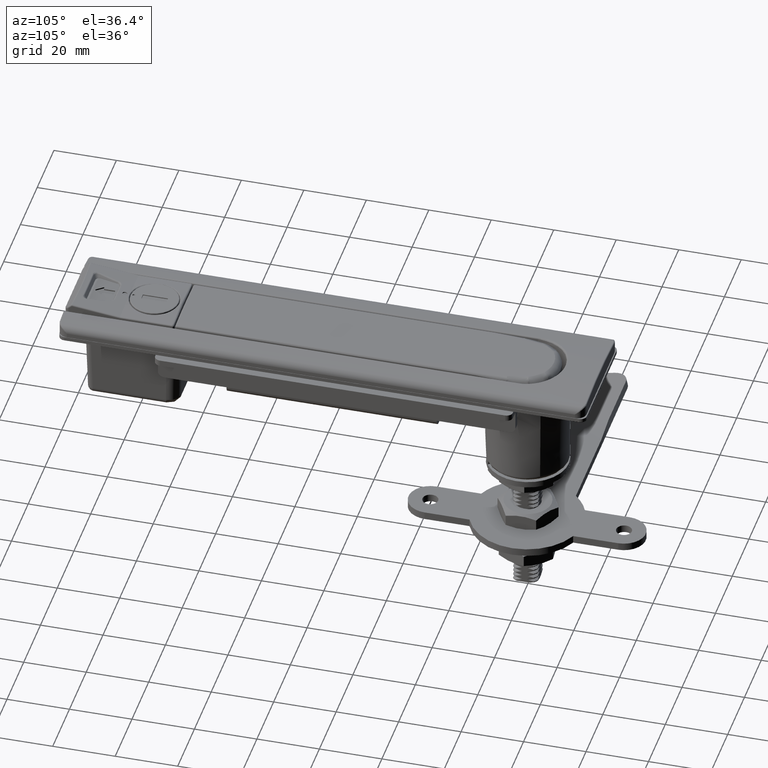
[diagram: clean part render]
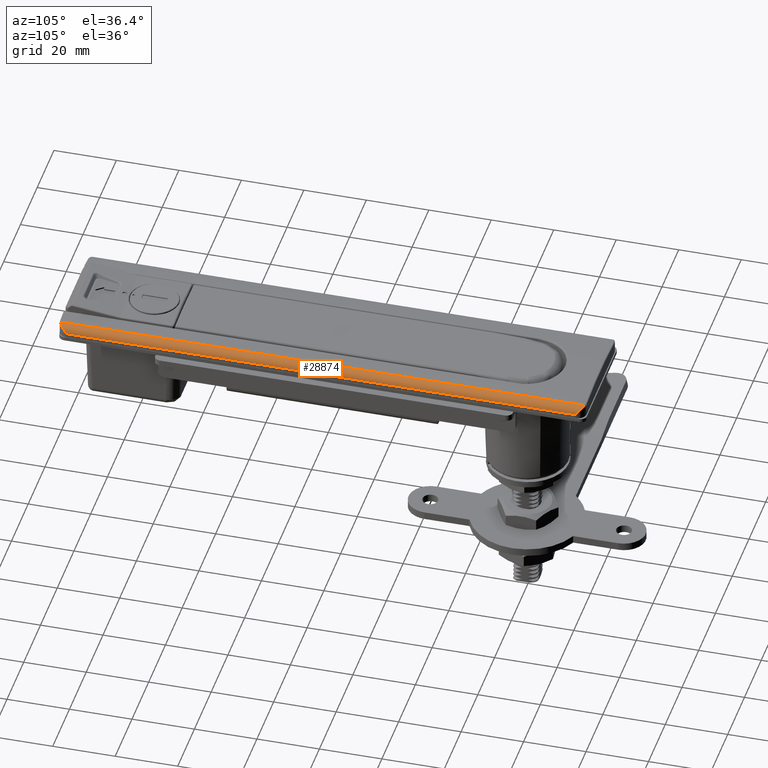
[diagram: same view with one face highlighted and labeled with its STEP entity id]
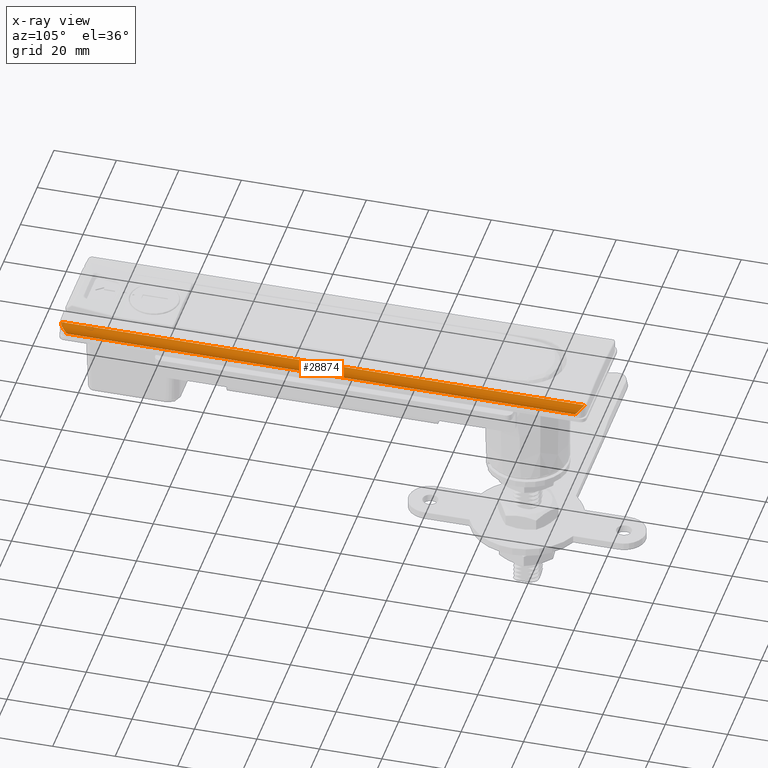
[diagram: x-ray of the same camera — body ghosted, the highlighted face saturated]
A machine part, auxiliary view. The second image highlights one B-rep face of the part: STEP entity #28874.
The next image is the same camera in x-ray: the body ghosted, the highlighted face saturated — about 0% of this face is hidden behind the body in this view.
In plain terms, the highlighted cylindrical surface (edge-blend (fillet) strip) has radius 2.5 mm, axis along (0, 1, 0).
Its self-contained STEP definition (entity closure, byte-faithful):
#901=B_SPLINE_CURVE_WITH_KNOTS('',3,(#41511,#41512,#41513,#41514,#41515,
#41516,#41517,#41518,#41519,#41520,#41521,#41522,#41523,#41524,#41525,#41526,
#41527,#41528,#41529,#41530,#41531,#41532,#41533,#41534,#41535,#41536,#41537,
#41538,#41539,#41540,#41541,#41542,#41543,#41544,#41545,#41546,#41547,#41548,
#41549,#41550,#41551,#41552,#41553,#41554,#41555,#41556,#41557,#41558,#41559,
#41560,#41561,#41562,#41563,#41564,#41565,#41566,#41567,#41568,#41569,#41570,
#41571,#41572,#41573,#41574),.UNSPECIFIED.,.F.,.F.,(4,2,2,2,2,2,2,2,2,2,
2,2,2,2,2,2,2,2,2,2,2,2,2,2,2,2,2,2,2,2,2,4),(0.,0.0384634394624664,0.0435843796102835,
0.0809559278017429,0.0874011518673533,0.125892092211438,0.131391041668699,
0.172829267349658,0.175735120925989,0.187621300080923,0.235681866692952,
0.243637969113694,0.298029848429125,0.354858912320566,0.411687976212006,
0.468817078083116,0.480596287940947,0.510405593114585,0.551465780998943,
0.617805382289646,0.623523825910446,0.690544585988126,0.697356008206868,
0.715723545679364,0.784966065123224,0.796262857976076,0.871473666812779,
0.877614821333242,0.929258128399176,0.980846956027261,0.997683300888228,
1.),.UNSPECIFIED.);
#902=B_SPLINE_CURVE_WITH_KNOTS('',3,(#41575,#41576,#41577,#41578,#41579,
#41580,#41581,#41582,#41583,#41584,#41585,#41586,#41587,#41588,#41589,#41590,
#41591,#41592,#41593,#41594,#41595,#41596,#41597,#41598,#41599,#41600,#41601,
#41602,#41603,#41604,#41605,#41606,#41607,#41608,#41609,#41610,#41611,#41612,
#41613,#41614,#41615,#41616,#41617,#41618,#41619,#41620,#41621,#41622,#41623,
#41624,#41625,#41626,#41627,#41628,#41629,#41630,#41631,#41632,#41633,#41634,
#41635,#41636,#41637,#41638,#41639,#41640),.UNSPECIFIED.,.F.,.F.,(4,2,2,
2,2,2,2,2,2,2,2,2,2,2,2,2,2,2,2,2,2,2,2,2,2,2,2,2,2,2,2,2,4),(0.,0.0023166991117766,
0.019153043972738,0.0707418716007594,0.152202501768872,0.224843132461699,
0.23285538708159,0.284276454320295,0.352498755217174,0.360285346687181,
0.427250042522715,0.432123969089421,0.477283248407298,0.489589104140577,
0.502756336389536,0.557843383776528,0.571767987568715,0.588312023787839,
0.644328692820644,0.698927249929528,0.751199112749147,0.755652974924293,
0.803734681458656,0.812378699919057,0.850332110685978,0.856759388873845,
0.895714227169816,0.900729709268405,0.938428170322129,0.944509478436495,
0.983040055087847,0.988110544270488,1.),.UNSPECIFIED.);
#3311=FACE_OUTER_BOUND('',#5100,.T.);
#5100=EDGE_LOOP('',(#19372,#19373,#19374,#19375));
#6885=LINE('',#39576,#8661);
#6889=LINE('',#39591,#8665);
#8661=VECTOR('',#32990,167.566902154712);
#8665=VECTOR('',#33004,162.6);
#11351=VERTEX_POINT('',#39573);
#11352=VERTEX_POINT('',#39575);
#11357=VERTEX_POINT('',#39589);
#11358=VERTEX_POINT('',#39590);
#14296=EDGE_CURVE('',#11351,#11352,#6885,.T.);
#14303=EDGE_CURVE('',#11357,#11358,#6889,.T.);
#14558=EDGE_CURVE('',#11351,#11358,#901,.T.);
#14559=EDGE_CURVE('',#11357,#11352,#902,.T.);
#19372=ORIENTED_EDGE('',*,*,#14296,.F.);
#19373=ORIENTED_EDGE('',*,*,#14558,.T.);
#19374=ORIENTED_EDGE('',*,*,#14303,.F.);
#19375=ORIENTED_EDGE('',*,*,#14559,.T.);
#28060=CYLINDRICAL_SURFACE('',#30785,2.5);
#28874=ADVANCED_FACE('',(#3311),#28060,.T.);
#30785=AXIS2_PLACEMENT_3D('',#41510,#33493,#33494);
#32990=DIRECTION('',(1.,0.,0.));
#33004=DIRECTION('',(-1.,0.,0.));
#33493=DIRECTION('center_axis',(1.,0.,0.));
#33494=DIRECTION('ref_axis',(0.,0.,-1.));
#39573=CARTESIAN_POINT('',(-144.833451077356,17.4210966826342,-36.2818562012433));
#39575=CARTESIAN_POINT('',(22.7334510773562,17.4210966826342,-36.2818562012433));
#39576=CARTESIAN_POINT('',(70.75,17.4210966826342,-36.2818562012433));
#39589=CARTESIAN_POINT('',(20.25,19.6000000000001,-33.8025625678869));
#39590=CARTESIAN_POINT('',(-142.35,19.6000000000001,-33.8025625678869));
#39591=CARTESIAN_POINT('',(14.6304817382278,19.6000000000001,-33.8025625678869));
#41510=CARTESIAN_POINT('Origin',(70.75,17.1000000000001,-33.8025625678869));
#41511=CARTESIAN_POINT('Ctrl Pts',(-144.833451077356,17.4210966826342,-36.2818562012433));
#41512=CARTESIAN_POINT('Ctrl Pts',(-144.819328379647,17.4753417846738,-36.2748308444724));
#41513=CARTESIAN_POINT('Ctrl Pts',(-144.803891760081,17.529199882887,-36.2661438750963));
#41514=CARTESIAN_POINT('Ctrl Pts',(-144.785062263687,17.5895847184582,-36.2544348821938));
#41515=CARTESIAN_POINT('Ctrl Pts',(-144.782828993507,17.5966696094506,-36.253029999965));
#41516=CARTESIAN_POINT('Ctrl Pts',(-144.764127133782,17.6553723033165,-36.2411314543925));
#41517=CARTESIAN_POINT('Ctrl Pts',(-144.746552049841,17.7064332039594,-36.2291184032605));
#41518=CARTESIAN_POINT('Ctrl Pts',(-144.724692532522,17.7654119487808,-36.2132946588538));
#41519=CARTESIAN_POINT('Ctrl Pts',(-144.721445379196,17.7740649346236,-36.2109230489537));
#41520=CARTESIAN_POINT('Ctrl Pts',(-144.698587624692,17.8342304672128,-36.1940844242524));
#41521=CARTESIAN_POINT('Ctrl Pts',(-144.677888621928,17.8849284792059,-36.1781044560416));
#41522=CARTESIAN_POINT('Ctrl Pts',(-144.653077134731,17.9417103060796,-36.1581979833236));
#41523=CARTESIAN_POINT('Ctrl Pts',(-144.649954988167,17.9487876528434,-36.1556802884321));
#41524=CARTESIAN_POINT('Ctrl Pts',(-144.623132711058,18.0090171539873,-36.1339435582318));
#41525=CARTESIAN_POINT('Ctrl Pts',(-144.598323429896,18.0609976394972,-36.1131068573247));
#41526=CARTESIAN_POINT('Ctrl Pts',(-144.570752356489,18.115176949519,-36.0892443829338));
#41527=CARTESIAN_POINT('Ctrl Pts',(-144.568940945085,18.1187206691136,-36.0876735070347));
#41528=CARTESIAN_POINT('Ctrl Pts',(-144.559696553223,18.1367256941105,-36.0796409092811));
#41529=CARTESIAN_POINT('Ctrl Pts',(-144.552186539945,18.1510796654024,-36.0730683436115));
#41530=CARTESIAN_POINT('Ctrl Pts',(-144.513913723269,18.2228779556892,-36.0393524559411));
#41531=CARTESIAN_POINT('Ctrl Pts',(-144.481769857176,18.2789244283978,-36.0102842517051));
#41532=CARTESIAN_POINT('Ctrl Pts',(-144.442814134619,18.3422994250104,-35.9742954837322));
#41533=CARTESIAN_POINT('Ctrl Pts',(-144.437246221948,18.35125485893,-35.9691344693685));
#41534=CARTESIAN_POINT('Ctrl Pts',(-144.393345988454,18.4210703380644,-35.9283111845951));
#41535=CARTESIAN_POINT('Ctrl Pts',(-144.353450139676,18.479803818892,-35.8904338096927));
#41536=CARTESIAN_POINT('Ctrl Pts',(-144.269143885734,18.595140288259,-35.8091108750777));
#41537=CARTESIAN_POINT('Ctrl Pts',(-144.224611231761,18.6515300769326,-35.7654934757307));
#41538=CARTESIAN_POINT('Ctrl Pts',(-144.133235090479,18.7590141581463,-35.6749951891539));
#41539=CARTESIAN_POINT('Ctrl Pts',(-144.086391527592,18.8101095729506,-35.6281155233852));
#41540=CARTESIAN_POINT('Ctrl Pts',(-143.990743252698,18.9071709545384,-35.5316847782487));
#41541=CARTESIAN_POINT('Ctrl Pts',(-143.941637429254,18.9534510732556,-35.4817860994687));
#41542=CARTESIAN_POINT('Ctrl Pts',(-143.881219792408,19.0063763141081,-35.4200076507784));
#41543=CARTESIAN_POINT('Ctrl Pts',(-143.870850149366,19.0153210912815,-35.4093911870235));
#41544=CARTESIAN_POINT('Ctrl Pts',(-143.834096002045,19.0465393802598,-35.3717177929538));
#41545=CARTESIAN_POINT('Ctrl Pts',(-143.807477380069,19.0682777626007,-35.3443437203001));
#41546=CARTESIAN_POINT('Ctrl Pts',(-143.743717488471,19.1182920804788,-35.2786337514883));
#41547=CARTESIAN_POINT('Ctrl Pts',(-143.706283655826,19.1460931587088,-35.2399022307015));
#41548=CARTESIAN_POINT('Ctrl Pts',(-143.6074415445,19.2154582431341,-35.1373478100739));
#41549=CARTESIAN_POINT('Ctrl Pts',(-143.545396688522,19.2550334060103,-35.0726542505686));
#41550=CARTESIAN_POINT('Ctrl Pts',(-143.477218446663,19.2944292009692,-35.0012537425327));
#41551=CARTESIAN_POINT('Ctrl Pts',(-143.471802532577,19.2975310715798,-34.9955797610104));
#41552=CARTESIAN_POINT('Ctrl Pts',(-143.40284547639,19.3366750327223,-34.9233105186905));
#41553=CARTESIAN_POINT('Ctrl Pts',(-143.338600437745,19.3693686810516,-34.8556852645123));
#41554=CARTESIAN_POINT('Ctrl Pts',(-143.267334852515,19.4016864728952,-34.7804146711007));
#41555=CARTESIAN_POINT('Ctrl Pts',(-143.260755613892,19.4046333301998,-34.7734633155326));
#41556=CARTESIAN_POINT('Ctrl Pts',(-143.236418975276,19.4153987540985,-34.7477416769968));
#41557=CARTESIAN_POINT('Ctrl Pts',(-143.218636269435,19.4230011051556,-34.7289263766277));
#41558=CARTESIAN_POINT('Ctrl Pts',(-143.133695744371,19.4580699819242,-34.638970061381));
#41559=CARTESIAN_POINT('Ctrl Pts',(-143.065769521076,19.4823938200215,-34.5668219173898));
#41560=CARTESIAN_POINT('Ctrl Pts',(-142.986125953495,19.50670618062,-34.4820631151436));
#41561=CARTESIAN_POINT('Ctrl Pts',(-142.974940300662,19.5100253667821,-34.4701552817258));
#41562=CARTESIAN_POINT('Ctrl Pts',(-142.889181274741,19.5347460719655,-34.3788326176842));
#41563=CARTESIAN_POINT('Ctrl Pts',(-142.814026058505,19.5522017947865,-34.2986492750898));
#41564=CARTESIAN_POINT('Ctrl Pts',(-142.732436854501,19.5667543080226,-34.2115100497918));
#41565=CARTESIAN_POINT('Ctrl Pts',(-142.726275965786,19.5678262055601,-34.2049295029104));
#41566=CARTESIAN_POINT('Ctrl Pts',(-142.668290321095,19.5776616252363,-34.1429890125302));
#41567=CARTESIAN_POINT('Ctrl Pts',(-142.616350186538,19.5845687123503,-34.0874683696278));
#41568=CARTESIAN_POINT('Ctrl Pts',(-142.512498413308,19.5946624969546,-33.9764098580607));
#41569=CARTESIAN_POINT('Ctrl Pts',(-142.460300134231,19.5978760329307,-33.9205702090898));
#41570=CARTESIAN_POINT('Ctrl Pts',(-142.391057195372,19.5996864628821,-33.8464896275915));
#41571=CARTESIAN_POINT('Ctrl Pts',(-142.374013561174,19.5999355562168,-33.8282546960109));
#41572=CARTESIAN_POINT('Ctrl Pts',(-142.354646820208,19.5999963821093,-33.8075342066077));
#41573=CARTESIAN_POINT('Ctrl Pts',(-142.35232340968,19.6000000000001,-33.805048386232));
#41574=CARTESIAN_POINT('Ctrl Pts',(-142.35,19.6000000000001,-33.8025625678869));
#41575=CARTESIAN_POINT('Ctrl Pts',(20.25,19.6000000000001,-33.8025625678869));
#41576=CARTESIAN_POINT('Ctrl Pts',(20.2523234096796,19.6000000000001,-33.805048386232));
#41577=CARTESIAN_POINT('Ctrl Pts',(20.254646820208,19.5999963821093,-33.8075342066077));
#41578=CARTESIAN_POINT('Ctrl Pts',(20.2740135611737,19.5999355562168,-33.8282546960109));
#41579=CARTESIAN_POINT('Ctrl Pts',(20.291057195371,19.5996864628821,-33.8464896275915));
#41580=CARTESIAN_POINT('Ctrl Pts',(20.3603001342314,19.5978760329306,-33.9205702090898));
#41581=CARTESIAN_POINT('Ctrl Pts',(20.4124984133078,19.5946624969545,-33.9764098580605));
#41582=CARTESIAN_POINT('Ctrl Pts',(20.5463464845536,19.5816532477248,-34.1195462447238));
#41583=CARTESIAN_POINT('Ctrl Pts',(20.6282634029211,19.5690635723864,-34.2070901479256));
#41584=CARTESIAN_POINT('Ctrl Pts',(20.7823944166818,19.5363295915884,-34.3715830280477));
#41585=CARTESIAN_POINT('Ctrl Pts',(20.8546988690473,19.5171505237941,-34.448652203061));
#41586=CARTESIAN_POINT('Ctrl Pts',(20.9342682887425,19.4916763729253,-34.5332840755854));
#41587=CARTESIAN_POINT('Ctrl Pts',(20.9421651439021,19.4890999601135,-34.5416813372854));
#41588=CARTESIAN_POINT('Ctrl Pts',(21.0006820695089,19.4696494105373,-34.603890639051));
#41589=CARTESIAN_POINT('Ctrl Pts',(21.0509739678277,19.4509362056484,-34.6572689241935));
#41590=CARTESIAN_POINT('Ctrl Pts',(21.1669793997516,19.4030478581739,-34.7801088016853));
#41591=CARTESIAN_POINT('Ctrl Pts',(21.23277151408,19.3722832790603,-34.8495550560639));
#41592=CARTESIAN_POINT('Ctrl Pts',(21.3053658022025,19.3341141982446,-34.9258653712768));
#41593=CARTESIAN_POINT('Ctrl Pts',(21.3127943281289,19.330158569827,-34.9336704372169));
#41594=CARTESIAN_POINT('Ctrl Pts',(21.3840249225598,19.291747928136,-35.0084750610422));
#41595=CARTESIAN_POINT('Ctrl Pts',(21.4471901432354,19.2539694629575,-35.0745331739749));
#41596=CARTESIAN_POINT('Ctrl Pts',(21.5139634455685,19.2098478758749,-35.1440322601394));
#41597=CARTESIAN_POINT('Ctrl Pts',(21.5184888300202,19.2068367011777,-35.1487407192835));
#41598=CARTESIAN_POINT('Ctrl Pts',(21.5648928738878,19.1757437727535,-35.1970049103805));
#41599=CARTESIAN_POINT('Ctrl Pts',(21.6063824830821,19.1461218382027,-35.2400302596602));
#41600=CARTESIAN_POINT('Ctrl Pts',(21.6584722550782,19.1065729334273,-35.2938331214454));
#41601=CARTESIAN_POINT('Ctrl Pts',(21.6695859275165,19.0979957613715,-35.3052995523331));
#41602=CARTESIAN_POINT('Ctrl Pts',(21.6924999422159,19.0800229469792,-35.3289125974776));
#41603=CARTESIAN_POINT('Ctrl Pts',(21.7043054412593,19.0705960153091,-35.341066830684));
#41604=CARTESIAN_POINT('Ctrl Pts',(21.7652686239616,19.0210441461391,-35.4037602916428));
#41605=CARTESIAN_POINT('Ctrl Pts',(21.8136357177066,18.9787981355769,-35.4532380331174));
#41606=CARTESIAN_POINT('Ctrl Pts',(21.87298944268,18.9230926758414,-35.5135580223791));
#41607=CARTESIAN_POINT('Ctrl Pts',(21.8849021319861,18.9117108155053,-35.5256440932098));
#41608=CARTESIAN_POINT('Ctrl Pts',(21.9108246389847,18.8864952224573,-35.5518972580638));
#41609=CARTESIAN_POINT('Ctrl Pts',(21.9248074330925,18.8726035102699,-35.5660276276263));
#41610=CARTESIAN_POINT('Ctrl Pts',(21.9857096618712,18.8108015125491,-35.6274280795224));
#41611=CARTESIAN_POINT('Ctrl Pts',(22.0318956217582,18.760474589231,-35.6736545713521));
#41612=CARTESIAN_POINT('Ctrl Pts',(22.120889584372,18.6560151860963,-35.7618206552228));
#41613=CARTESIAN_POINT('Ctrl Pts',(22.1637535679298,18.6020105629977,-35.8038380755179));
#41614=CARTESIAN_POINT('Ctrl Pts',(22.2450536658121,18.4916971459652,-35.8823934882389));
#41615=CARTESIAN_POINT('Ctrl Pts',(22.2836010726646,18.435584093358,-35.9190877122598));
#41616=CARTESIAN_POINT('Ctrl Pts',(22.3238560525861,18.3724954963898,-35.9566739077337));
#41617=CARTESIAN_POINT('Ctrl Pts',(22.3270061679706,18.3675273870173,-35.9596100865061));
#41618=CARTESIAN_POINT('Ctrl Pts',(22.3640375120061,18.3087541782261,-35.9940654369398));
#41619=CARTESIAN_POINT('Ctrl Pts',(22.3966844762561,18.2532641328262,-36.0238341589202));
#41620=CARTESIAN_POINT('Ctrl Pts',(22.4335132002446,18.1859726971385,-36.0565940611769));
#41621=CARTESIAN_POINT('Ctrl Pts',(22.4390790980038,18.1756687080468,-36.061521531056));
#41622=CARTESIAN_POINT('Ctrl Pts',(22.4688290843219,18.1198589104092,-36.0877293538403));
#41623=CARTESIAN_POINT('Ctrl Pts',(22.4922581468694,18.0731984293585,-36.1079250539146));
#41624=CARTESIAN_POINT('Ctrl Pts',(22.5186500107216,18.0174095749854,-36.1299946124167));
#41625=CARTESIAN_POINT('Ctrl Pts',(22.5224475526048,18.0093001049285,-36.1331529248304));
#41626=CARTESIAN_POINT('Ctrl Pts',(22.5490867034795,17.9518337283363,-36.1551810607093));
#41627=CARTESIAN_POINT('Ctrl Pts',(22.5709757179846,17.9013962231252,-36.172682634223));
#41628=CARTESIAN_POINT('Ctrl Pts',(22.5944403147568,17.8434023375332,-36.1906930491267));
#41629=CARTESIAN_POINT('Ctrl Pts',(22.5970985928382,17.8367716875548,-36.1927218407366));
#41630=CARTESIAN_POINT('Ctrl Pts',(22.6195804934284,17.7801730561804,-36.2097799869163));
#41631=CARTESIAN_POINT('Ctrl Pts',(22.638377800395,17.7293620232898,-36.223373020339));
#41632=CARTESIAN_POINT('Ctrl Pts',(22.6588952516746,17.6695699125426,-36.2373609220004));
#41633=CARTESIAN_POINT('Ctrl Pts',(22.6617159193526,17.6612468505345,-36.2392637319399));
#41634=CARTESIAN_POINT('Ctrl Pts',(22.6821906433622,17.6000671099245,-36.2529256755808));
#41635=CARTESIAN_POINT('Ctrl Pts',(22.698728786638,17.546573060563,-36.2630935401414));
#41636=CARTESIAN_POINT('Ctrl Pts',(22.7160235171819,17.4855094084663,-36.2727146903929));
#41637=CARTESIAN_POINT('Ctrl Pts',(22.7180130713661,17.4784000812552,-36.2738047675359));
#41638=CARTESIAN_POINT('Ctrl Pts',(22.7245944856713,17.4545951392756,-36.2773544866843));
#41639=CARTESIAN_POINT('Ctrl Pts',(22.7290856022052,17.4378644170921,-36.2796845892014));
#41640=CARTESIAN_POINT('Ctrl Pts',(22.7334510773562,17.4210966826342,-36.2818562012433));